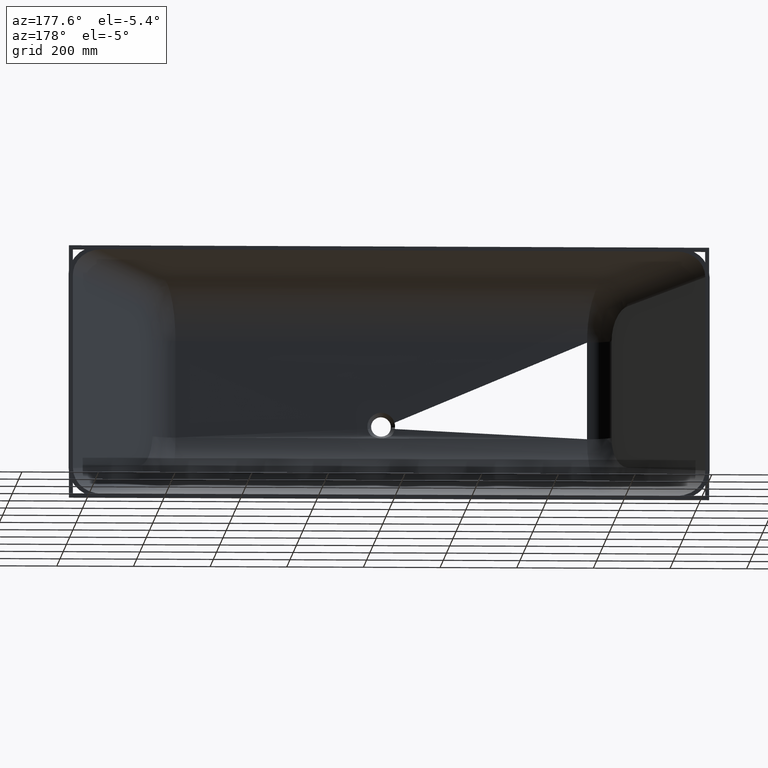
[diagram: clean part render]
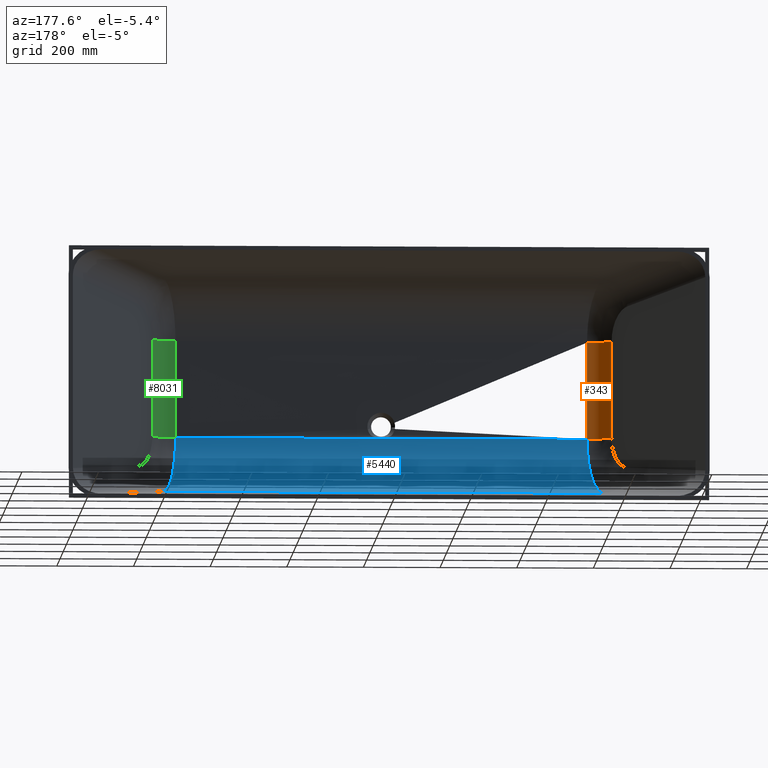
[diagram: same view with three faces highlighted in distinct colors, each labeled with its STEP entity id]
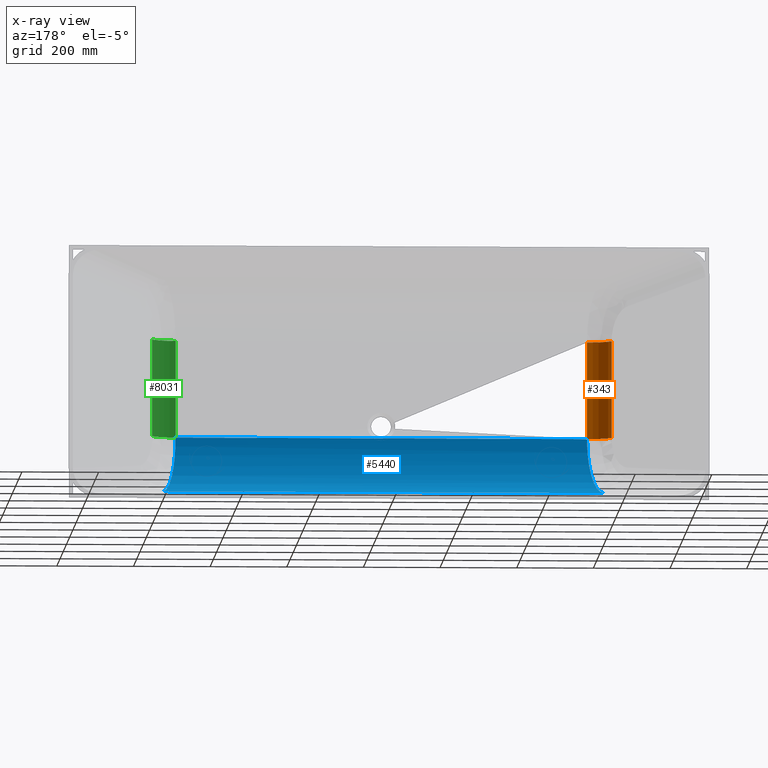
[diagram: x-ray of the same camera — body ghosted, the three highlighted faces saturated]
A machine part, auxiliary view with three faces highlighted in distinct colors.
The next image is the same camera in x-ray (body ghosted, the three faces saturated) — at least one of them is partly hidden behind the body in this view.
Their STEP definitions:

[orange] entity #343 — the highlighted cylindrical surface (edge-blend (fillet) strip) has radius 70 mm, axis along (0, 0, -1).
#306 = VERTEX_POINT ( 'NONE', #8808 ) ;
#343 = ADVANCED_FACE ( 'NONE', ( #2362 ), #2140, .F. ) ;
#656 = EDGE_CURVE ( 'NONE', #6265, #9270, #4564, .T. ) ;
#964 = LINE ( 'NONE', #4458, #6607 ) ;
#1516 = ORIENTED_EDGE ( 'NONE', *, *, #5108, .T. ) ;
#2140 = CYLINDRICAL_SURFACE ( 'NONE', #8070, 70.00000000000005700 ) ;
#2362 = FACE_OUTER_BOUND ( 'NONE', #5544, .T. ) ;
#3259 = LINE ( 'NONE', #4470, #3743 ) ;
#3743 = VECTOR ( 'NONE', #4471, 1000.000000000000000 ) ;
#4175 = EDGE_CURVE ( 'NONE', #306, #9909, #8126, .T. ) ;
#4458 = CARTESIAN_POINT ( 'NONE',  ( -536.8565674175666800, -487.0000000000000000, -126.5197825624870800 ) ) ;
#4470 = CARTESIAN_POINT ( 'NONE',  ( -599.3892388784411200, -448.4589414946903500, 126.5197825624869100 ) ) ;
#4471 = DIRECTION ( 'NONE',  ( 0.0000000000000000000, 0.0000000000000000000, 1.000000000000000000 ) ) ;
#4473 = DIRECTION ( 'NONE',  ( 0.0000000000000000000, -0.0000000000000000000, -1.000000000000000000 ) ) ;
#4564 = CIRCLE ( 'NONE', #5542, 70.00000000000005700 ) ;
#4618 = CARTESIAN_POINT ( 'NONE',  ( -599.3892388784411200, -448.4589414946903500, -126.5197825624870800 ) ) ;
#5108 = EDGE_CURVE ( 'NONE', #306, #6265, #964, .T. ) ;
#5542 = AXIS2_PLACEMENT_3D ( 'NONE', #6525, #6513, #6487 ) ;
#5544 = EDGE_LOOP ( 'NONE', ( #9736, #1516, #7887, #8435 ) ) ;
#6265 = VERTEX_POINT ( 'NONE', #9087 ) ;
#6487 = DIRECTION ( 'NONE',  ( -1.000000000000000000, 0.0000000000000000000, 0.0000000000000000000 ) ) ;
#6513 = DIRECTION ( 'NONE',  ( 0.0000000000000000000, -0.0000000000000000000, -1.000000000000000000 ) ) ;
#6525 = CARTESIAN_POINT ( 'NONE',  ( -536.8565674175666800, -417.0000000000000000, -126.5197825624870800 ) ) ;
#6607 = VECTOR ( 'NONE', #4473, 1000.000000000000000 ) ;
#6765 = DIRECTION ( 'NONE',  ( -1.000000000000000000, 0.0000000000000000000, 0.0000000000000000000 ) ) ;
#6768 = DIRECTION ( 'NONE',  ( 0.0000000000000000000, -0.0000000000000000000, -1.000000000000000000 ) ) ;
#6780 = CARTESIAN_POINT ( 'NONE',  ( -536.8565674175666800, -417.0000000000000000, 126.5197825624869700 ) ) ;
#7887 = ORIENTED_EDGE ( 'NONE', *, *, #656, .T. ) ;
#8070 = AXIS2_PLACEMENT_3D ( 'NONE', #8789, #9718, #8772 ) ;
#8126 = CIRCLE ( 'NONE', #10403, 70.00000000000005700 ) ;
#8435 = ORIENTED_EDGE ( 'NONE', *, *, #9358, .T. ) ;
#8772 = DIRECTION ( 'NONE',  ( -1.000000000000000000, 0.0000000000000000000, 0.0000000000000000000 ) ) ;
#8789 = CARTESIAN_POINT ( 'NONE',  ( -536.8565674175666800, -416.9999999999999400, 320.0000000000000000 ) ) ;
#8808 = CARTESIAN_POINT ( 'NONE',  ( -536.8565674175666800, -487.0000000000000000, 126.5197825624869700 ) ) ;
#9087 = CARTESIAN_POINT ( 'NONE',  ( -536.8565674175666800, -487.0000000000000000, -126.5197825624870800 ) ) ;
#9270 = VERTEX_POINT ( 'NONE', #4618 ) ;
#9358 = EDGE_CURVE ( 'NONE', #9270, #9909, #3259, .T. ) ;
#9718 = DIRECTION ( 'NONE',  ( 0.0000000000000000000, 0.0000000000000000000, -1.000000000000000000 ) ) ;
#9736 = ORIENTED_EDGE ( 'NONE', *, *, #4175, .F. ) ;
#9909 = VERTEX_POINT ( 'NONE', #10382 ) ;
#10382 = CARTESIAN_POINT ( 'NONE',  ( -599.3892388784411200, -448.4589414946903500, 126.5197825624869700 ) ) ;
#10403 = AXIS2_PLACEMENT_3D ( 'NONE', #6780, #6768, #6765 ) ;

[blue] entity #5440 — the highlighted cylindrical surface (partial cylindrical patch) has radius 155 mm, axis along (1, 0, 0).
#441 = CARTESIAN_POINT ( 'NONE',  ( -552.0938129332706700, -431.7691007081431300, -271.2375758953843400 ) ) ;
#451 = CARTESIAN_POINT ( 'NONE',  ( -536.8565674175665700, -487.0000000000000000, -209.4179922129659700 ) ) ;
#461 = CARTESIAN_POINT ( 'NONE',  ( -536.8565674175666800, -487.0000000000000000, -126.5197825624870800 ) ) ;
#462 = CARTESIAN_POINT ( 'NONE',  ( -574.8195190304029400, -349.3945545020432100, -280.5406560623976600 ) ) ;
#555 = DIRECTION ( 'NONE',  ( 1.000000000000000000, 0.0000000000000000000, 0.0000000000000000000 ) ) ;
#574 = DIRECTION ( 'NONE',  ( 0.0000000000000000000, 0.0000000000000000000, -1.000000000000000000 ) ) ;
#577 = CARTESIAN_POINT ( 'NONE',  ( -825.0000000000000000, -331.9999999999999400, -126.5197825624870800 ) ) ;
#658 = VECTOR ( 'NONE', #889, 1000.000000000000000 ) ;
#889 = DIRECTION ( 'NONE',  ( -1.000000000000000000, 0.0000000000000000000, 0.0000000000000000000 ) ) ;
#910 = CARTESIAN_POINT ( 'NONE',  ( -580.0000000000001100, -349.3945545020432100, -280.5406560623976600 ) ) ;
#2323 = VECTOR ( 'NONE', #3793, 1000.000000000000000 ) ;
#2339 = CARTESIAN_POINT ( 'NONE',  ( 574.8195190304028300, -349.3945545020432100, -280.5406560623976600 ) ) ;
#2527 = EDGE_CURVE ( 'NONE', #6265, #2649, #2737, .T. ) ;
#2565 = FACE_OUTER_BOUND ( 'NONE', #8927, .T. ) ;
#2569 = EDGE_CURVE ( 'NONE', #4818, #4835, #4536, .T. ) ;
#2649 = VERTEX_POINT ( 'NONE', #9775 ) ;
#2737 =( BOUNDED_CURVE ( )  B_SPLINE_CURVE ( 3, ( #461, #451, #441, #462 ),
 .UNSPECIFIED., .F., .T. ) 
 B_SPLINE_CURVE_WITH_KNOTS ( ( 4, 4 ),
 ( 0.0000000000000000000, 1.458336493783482800 ),
 .UNSPECIFIED. ) 
 CURVE ( )  GEOMETRIC_REPRESENTATION_ITEM ( )  RATIONAL_B_SPLINE_CURVE ( ( 1.000000000000000000, 0.8304858769412613000, 0.8304858769412613000, 1.000000000000000000 ) ) 
 REPRESENTATION_ITEM ( '' )  );
#2882 = CARTESIAN_POINT ( 'NONE',  ( 536.8565674175664500, -487.0000000000000000, -209.4179922129659700 ) ) ;
#2959 = CARTESIAN_POINT ( 'NONE',  ( 536.8565674175666800, -487.0000000000000000, -126.5197825624870800 ) ) ;
#2981 = CARTESIAN_POINT ( 'NONE',  ( 574.8195190304028300, -349.3945545020432100, -280.5406560623976600 ) ) ;
#3066 = CARTESIAN_POINT ( 'NONE',  ( 552.0938129332706700, -431.7691007081431300, -271.2375758953843400 ) ) ;
#3188 = AXIS2_PLACEMENT_3D ( 'NONE', #577, #555, #574 ) ;
#3433 = CYLINDRICAL_SURFACE ( 'NONE', #3188, 155.0000000000000300 ) ;
#3684 = CARTESIAN_POINT ( 'NONE',  ( 536.8565674175666800, -487.0000000000000000, -126.5197825624870800 ) ) ;
#3793 = DIRECTION ( 'NONE',  ( 1.000000000000000000, -0.0000000000000000000, -0.0000000000000000000 ) ) ;
#3800 = CARTESIAN_POINT ( 'NONE',  ( 579.9999999999998900, -487.0000000000000000, -126.5197825624870800 ) ) ;
#4536 =( BOUNDED_CURVE ( )  B_SPLINE_CURVE ( 3, ( #2339, #3066, #2882, #3684 ),
 .UNSPECIFIED., .F., .T. ) 
 B_SPLINE_CURVE_WITH_KNOTS ( ( 4, 4 ),
 ( 1.683256159806310500, 3.141592653589793100 ),
 .UNSPECIFIED. ) 
 CURVE ( )  GEOMETRIC_REPRESENTATION_ITEM ( )  RATIONAL_B_SPLINE_CURVE ( ( 1.000000000000000000, 0.8304858769412613000, 0.8304858769412613000, 1.000000000000000000 ) ) 
 REPRESENTATION_ITEM ( '' )  );
#4818 = VERTEX_POINT ( 'NONE', #2981 ) ;
#4835 = VERTEX_POINT ( 'NONE', #2959 ) ;
#5139 = EDGE_CURVE ( 'NONE', #6265, #4835, #6330, .T. ) ;
#5314 = ORIENTED_EDGE ( 'NONE', *, *, #2527, .F. ) ;
#5440 = ADVANCED_FACE ( 'NONE', ( #2565 ), #3433, .F. ) ;
#5445 = ORIENTED_EDGE ( 'NONE', *, *, #2569, .F. ) ;
#6265 = VERTEX_POINT ( 'NONE', #9087 ) ;
#6330 = LINE ( 'NONE', #3800, #2323 ) ;
#7303 = ORIENTED_EDGE ( 'NONE', *, *, #5139, .T. ) ;
#7459 = ORIENTED_EDGE ( 'NONE', *, *, #9613, .T. ) ;
#8474 = LINE ( 'NONE', #910, #658 ) ;
#8927 = EDGE_LOOP ( 'NONE', ( #7459, #5314, #7303, #5445 ) ) ;
#9087 = CARTESIAN_POINT ( 'NONE',  ( -536.8565674175666800, -487.0000000000000000, -126.5197825624870800 ) ) ;
#9613 = EDGE_CURVE ( 'NONE', #4818, #2649, #8474, .T. ) ;
#9775 = CARTESIAN_POINT ( 'NONE',  ( -574.8195190304029400, -349.3945545020432100, -280.5406560623976600 ) ) ;

[green] entity #8031 — the highlighted cylindrical surface (edge-blend (fillet) strip) has radius 70 mm, axis along (-0, 0, 1).
#443 = AXIS2_PLACEMENT_3D ( 'NONE', #5169, #5153, #5144 ) ;
#458 = EDGE_CURVE ( 'NONE', #8127, #3709, #4184, .T. ) ;
#793 = ORIENTED_EDGE ( 'NONE', *, *, #4462, .T. ) ;
#2959 = CARTESIAN_POINT ( 'NONE',  ( 536.8565674175666800, -487.0000000000000000, -126.5197825624870800 ) ) ;
#3709 = VERTEX_POINT ( 'NONE', #8744 ) ;
#3735 = AXIS2_PLACEMENT_3D ( 'NONE', #6390, #6488, #6400 ) ;
#4124 = LINE ( 'NONE', #5651, #6318 ) ;
#4184 = CIRCLE ( 'NONE', #5207, 70.00000000000005700 ) ;
#4212 = CYLINDRICAL_SURFACE ( 'NONE', #3735, 70.00000000000005700 ) ;
#4224 = LINE ( 'NONE', #7138, #5609 ) ;
#4462 = EDGE_CURVE ( 'NONE', #4835, #8127, #4124, .T. ) ;
#4835 = VERTEX_POINT ( 'NONE', #2959 ) ;
#5144 = DIRECTION ( 'NONE',  ( 1.000000000000000000, 0.0000000000000000000, 0.0000000000000000000 ) ) ;
#5149 = FACE_OUTER_BOUND ( 'NONE', #10210, .T. ) ;
#5153 = DIRECTION ( 'NONE',  ( 0.0000000000000000000, 0.0000000000000000000, 1.000000000000000000 ) ) ;
#5169 = CARTESIAN_POINT ( 'NONE',  ( 536.8565674175665700, -417.0000000000000000, -126.5197825624870800 ) ) ;
#5207 = AXIS2_PLACEMENT_3D ( 'NONE', #7221, #7208, #7197 ) ;
#5609 = VECTOR ( 'NONE', #7149, 1000.000000000000000 ) ;
#5651 = CARTESIAN_POINT ( 'NONE',  ( 536.8565674175666800, -487.0000000000000000, 126.5197825624869700 ) ) ;
#5700 = DIRECTION ( 'NONE',  ( -0.0000000000000000000, -0.0000000000000000000, 1.000000000000000000 ) ) ;
#5715 = ORIENTED_EDGE ( 'NONE', *, *, #9104, .F. ) ;
#6309 = CARTESIAN_POINT ( 'NONE',  ( 536.8565674175666800, -487.0000000000000000, 126.5197825624869700 ) ) ;
#6318 = VECTOR ( 'NONE', #5700, 1000.000000000000000 ) ;
#6390 = CARTESIAN_POINT ( 'NONE',  ( 536.8565674175666800, -416.9999999999999400, -320.0000000000000000 ) ) ;
#6400 = DIRECTION ( 'NONE',  ( 1.000000000000000000, 0.0000000000000000000, 0.0000000000000000000 ) ) ;
#6488 = DIRECTION ( 'NONE',  ( -0.0000000000000000000, 0.0000000000000000000, 1.000000000000000000 ) ) ;
#7138 = CARTESIAN_POINT ( 'NONE',  ( 599.3892388784411200, -448.4589414946903500, -126.5197825624869900 ) ) ;
#7149 = DIRECTION ( 'NONE',  ( 0.0000000000000000000, 0.0000000000000000000, -1.000000000000000000 ) ) ;
#7197 = DIRECTION ( 'NONE',  ( 1.000000000000000000, 0.0000000000000000000, 0.0000000000000000000 ) ) ;
#7208 = DIRECTION ( 'NONE',  ( 0.0000000000000000000, 0.0000000000000000000, 1.000000000000000000 ) ) ;
#7221 = CARTESIAN_POINT ( 'NONE',  ( 536.8565674175666800, -417.0000000000000000, 126.5197825624869700 ) ) ;
#7228 = VERTEX_POINT ( 'NONE', #8467 ) ;
#7362 = CIRCLE ( 'NONE', #443, 69.99999999999995700 ) ;
#8031 = ADVANCED_FACE ( 'NONE', ( #5149 ), #4212, .F. ) ;
#8127 = VERTEX_POINT ( 'NONE', #6309 ) ;
#8467 = CARTESIAN_POINT ( 'NONE',  ( 599.3892388784411200, -448.4589414946903500, -126.5197825624870800 ) ) ;
#8584 = ORIENTED_EDGE ( 'NONE', *, *, #8737, .T. ) ;
#8737 = EDGE_CURVE ( 'NONE', #3709, #7228, #4224, .T. ) ;
#8744 = CARTESIAN_POINT ( 'NONE',  ( 599.3892388784411200, -448.4589414946903500, 126.5197825624869700 ) ) ;
#9104 = EDGE_CURVE ( 'NONE', #4835, #7228, #7362, .T. ) ;
#10210 = EDGE_LOOP ( 'NONE', ( #5715, #793, #10329, #8584 ) ) ;
#10329 = ORIENTED_EDGE ( 'NONE', *, *, #458, .T. ) ;